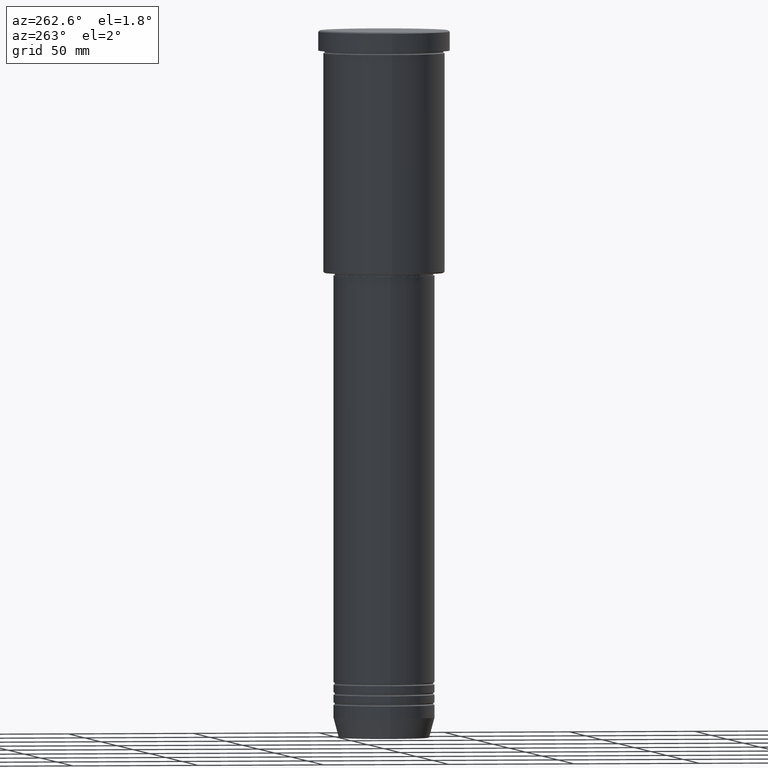
[diagram: clean part render]
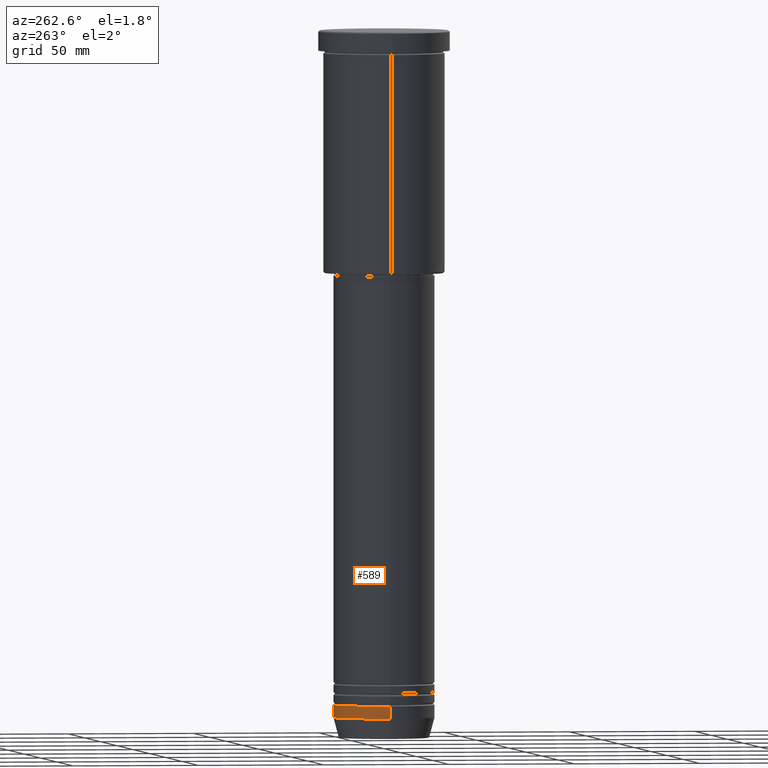
[diagram: same view with one face highlighted and labeled with its STEP entity id]
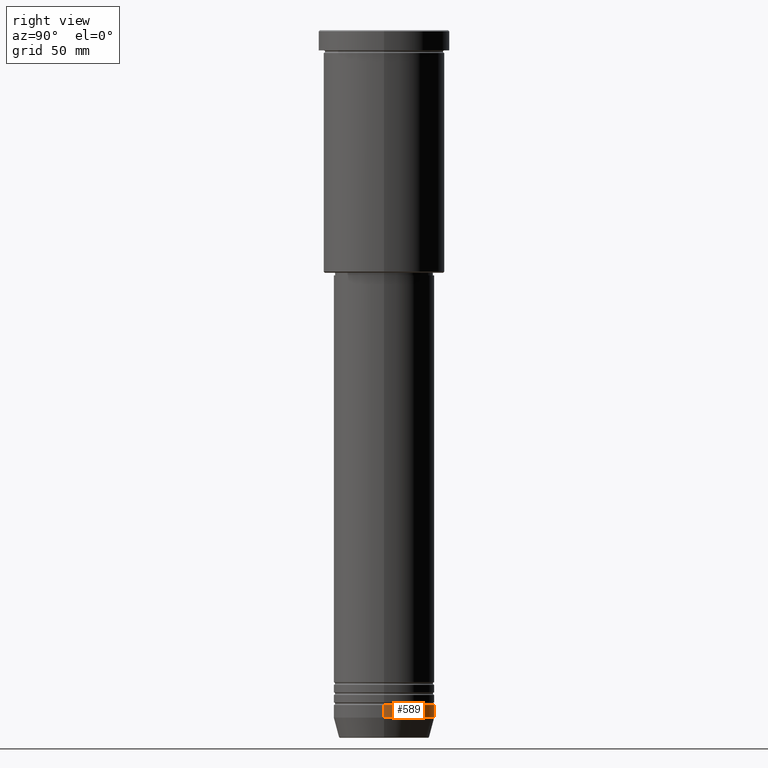
[diagram: same view with one face highlighted and labeled with its STEP entity id]
A machine part, auxiliary view. The second image highlights one B-rep face of the part: STEP entity #589.
A second angle (right view) of the same face is appended — the face is thin or edge-on in the first view.
In plain terms, the highlighted cylindrical surface (partial cylindrical patch) has radius 20 mm, axis along (-0, -0, 1).
Its self-contained STEP definition (entity closure, byte-faithful):
#24 = CARTESIAN_POINT ( 'NONE',  ( 0.000000000000000000, 0.000000000000000000, -272.0000000000000000 ) ) ;
#55 = VERTEX_POINT ( 'NONE', #430 ) ;
#83 = CARTESIAN_POINT ( 'NONE',  ( -20.00000000000000000, 2.449293598294706513E-15, -267.0000000000000000 ) ) ;
#111 = VECTOR ( 'NONE', #302, 1000.000000000000000 ) ;
#126 = ORIENTED_EDGE ( 'NONE', *, *, #755, .T. ) ;
#136 = CARTESIAN_POINT ( 'NONE',  ( 20.00000000000000355, 0.000000000000000000, 0.000000000000000000 ) ) ;
#140 = LINE ( 'NONE', #136, #376 ) ;
#172 = DIRECTION ( 'NONE',  ( 1.000000000000000000, 0.000000000000000000, 0.000000000000000000 ) ) ;
#195 = CYLINDRICAL_SURFACE ( 'NONE', #204, 20.00000000000000355 ) ;
#198 = DIRECTION ( 'NONE',  ( 1.000000000000000000, 0.000000000000000000, 0.000000000000000000 ) ) ;
#204 = AXIS2_PLACEMENT_3D ( 'NONE', #992, #1003, #172 ) ;
#302 = DIRECTION ( 'NONE',  ( -0.000000000000000000, -0.000000000000000000, 1.000000000000000000 ) ) ;
#311 = VERTEX_POINT ( 'NONE', #1035 ) ;
#312 = EDGE_CURVE ( 'NONE', #311, #940, #1120, .T. ) ;
#319 = AXIS2_PLACEMENT_3D ( 'NONE', #24, #381, #198 ) ;
#331 = DIRECTION ( 'NONE',  ( -0.000000000000000000, -0.000000000000000000, 1.000000000000000000 ) ) ;
#376 = VECTOR ( 'NONE', #331, 1000.000000000000000 ) ;
#381 = DIRECTION ( 'NONE',  ( -0.000000000000000000, -0.000000000000000000, 1.000000000000000000 ) ) ;
#430 = CARTESIAN_POINT ( 'NONE',  ( 20.00000000000000000, 0.000000000000000000, -267.0000000000000000 ) ) ;
#437 = CARTESIAN_POINT ( 'NONE',  ( 0.000000000000000000, 0.000000000000000000, -267.0000000000000000 ) ) ;
#465 = EDGE_CURVE ( 'NONE', #55, #940, #946, .T. ) ;
#475 = CARTESIAN_POINT ( 'NONE',  ( 20.00000000000000355, 0.000000000000000000, -272.0000000000000000 ) ) ;
#511 = DIRECTION ( 'NONE',  ( -0.000000000000000000, -0.000000000000000000, 1.000000000000000000 ) ) ;
#525 = AXIS2_PLACEMENT_3D ( 'NONE', #437, #511, #877 ) ;
#589 = ADVANCED_FACE ( 'NONE', ( #1011 ), #195, .T. ) ;
#672 = EDGE_LOOP ( 'NONE', ( #126, #969, #787, #1083 ) ) ;
#755 = EDGE_CURVE ( 'NONE', #765, #311, #1177, .T. ) ;
#765 = VERTEX_POINT ( 'NONE', #475 ) ;
#787 = ORIENTED_EDGE ( 'NONE', *, *, #465, .F. ) ;
#854 = EDGE_CURVE ( 'NONE', #765, #55, #140, .T. ) ;
#857 = CARTESIAN_POINT ( 'NONE',  ( -20.00000000000000355, 2.449293598294706907E-15, 0.000000000000000000 ) ) ;
#877 = DIRECTION ( 'NONE',  ( 1.000000000000000000, 0.000000000000000000, 0.000000000000000000 ) ) ;
#940 = VERTEX_POINT ( 'NONE', #83 ) ;
#946 = CIRCLE ( 'NONE', #525, 20.00000000000000000 ) ;
#969 = ORIENTED_EDGE ( 'NONE', *, *, #312, .T. ) ;
#992 = CARTESIAN_POINT ( 'NONE',  ( 0.000000000000000000, 0.000000000000000000, 0.000000000000000000 ) ) ;
#1003 = DIRECTION ( 'NONE',  ( -0.000000000000000000, -0.000000000000000000, 1.000000000000000000 ) ) ;
#1011 = FACE_OUTER_BOUND ( 'NONE', #672, .T. ) ;
#1035 = CARTESIAN_POINT ( 'NONE',  ( -20.00000000000000355, 2.449293598294706907E-15, -272.0000000000000000 ) ) ;
#1083 = ORIENTED_EDGE ( 'NONE', *, *, #854, .F. ) ;
#1120 = LINE ( 'NONE', #857, #111 ) ;
#1177 = CIRCLE ( 'NONE', #319, 20.00000000000000355 ) ;